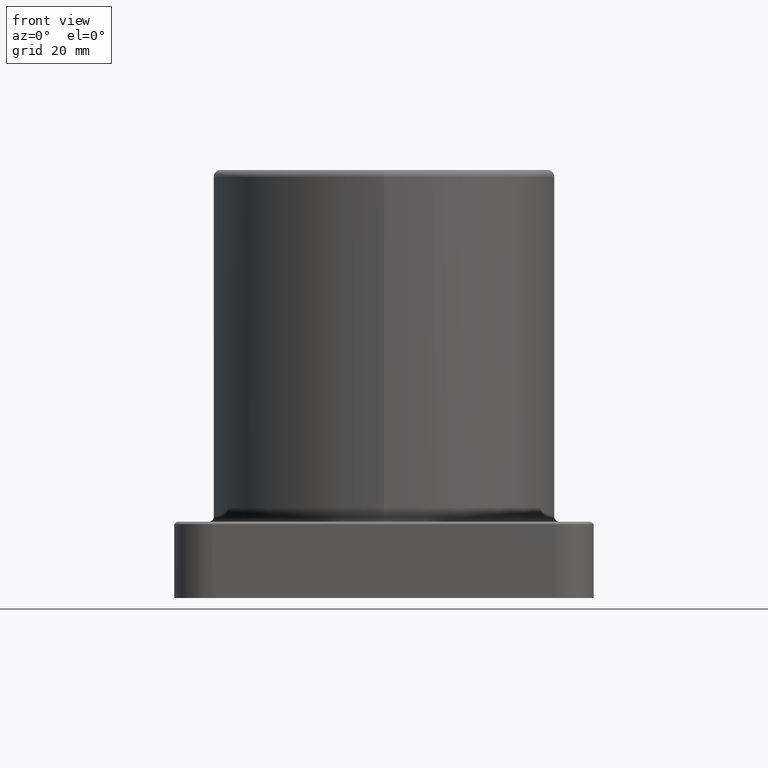
[diagram: clean part render]
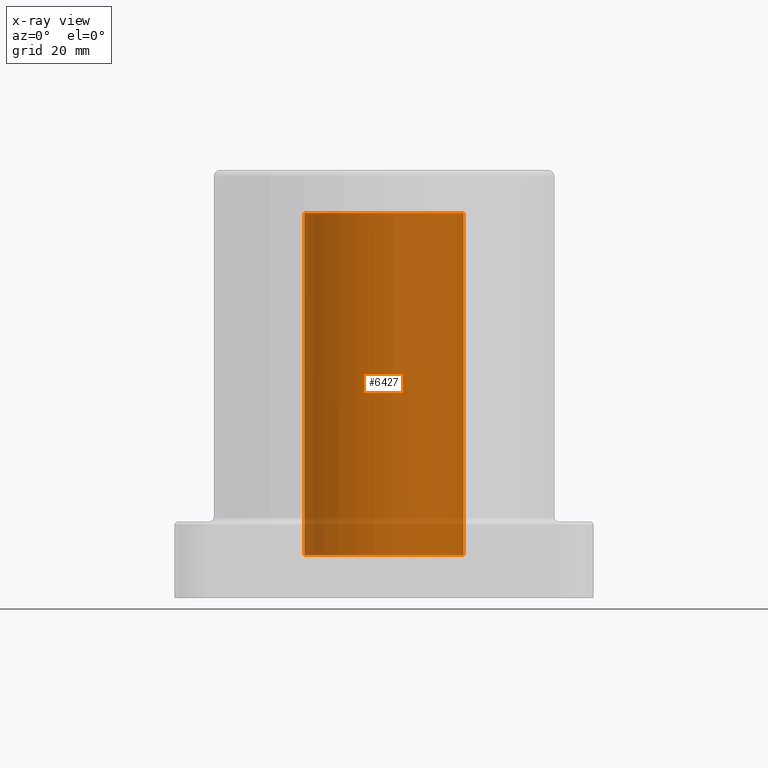
[diagram: x-ray — body ghosted, one internal face saturated and labeled with its STEP entity id]
A machine part, front view, then the same camera in x-ray: the body is ghosted and one INTERNAL B-rep face — a face not visible from any outside direction — is saturated and labeled: STEP entity #6427.
In plain terms, the highlighted cylindrical surface (partial cylindrical patch) has radius 13.2715 mm, axis along (0, 0, 1).
Its self-contained STEP definition (entity closure, byte-faithful):
#264 = EDGE_CURVE ( 'NONE', #779, #8091, #946, .T. ) ;
#518 = CYLINDRICAL_SURFACE ( 'NONE', #3303, 0.5225000000000000755 ) ;
#779 = VERTEX_POINT ( 'NONE', #1652 ) ;
#916 = CARTESIAN_POINT ( 'NONE',  ( 0.000000000000000000, -1.711586765992788363E-16, 0.2817499999999995008 ) ) ;
#946 = LINE ( 'NONE', #2219, #6269 ) ;
#951 = ORIENTED_EDGE ( 'NONE', *, *, #2130, .F. ) ;
#1152 = DIRECTION ( 'NONE',  ( 1.000000000000000000, 0.000000000000000000, 0.000000000000000000 ) ) ;
#1384 = CIRCLE ( 'NONE', #7949, 0.5225000000000000755 ) ;
#1602 = DIRECTION ( 'NONE',  ( 0.000000000000000000, 3.971110341195992010E-17, 1.000000000000000000 ) ) ;
#1606 = CARTESIAN_POINT ( 'NONE',  ( -0.5225000000000000755, -1.071708813438296312E-16, 0.2717499999999999361 ) ) ;
#1652 = CARTESIAN_POINT ( 'NONE',  ( 0.5225000000000000755, -1.711586765992788363E-16, 0.2817499999999995008 ) ) ;
#2130 = EDGE_CURVE ( 'NONE', #5822, #779, #1384, .T. ) ;
#2219 = CARTESIAN_POINT ( 'NONE',  ( 0.5225000000000000755, -1.711586765992788363E-16, 0.2717499999999999361 ) ) ;
#2719 = EDGE_LOOP ( 'NONE', ( #951, #2778, #7088, #6354 ) ) ;
#2778 = ORIENTED_EDGE ( 'NONE', *, *, #6641, .T. ) ;
#2904 = CARTESIAN_POINT ( 'NONE',  ( 0.000000000000000000, -1.711586765992788610E-16, 2.524250000000000327 ) ) ;
#2986 = CIRCLE ( 'NONE', #5401, 0.5225000000000000755 ) ;
#3303 = AXIS2_PLACEMENT_3D ( 'NONE', #4814, #4186, #1152 ) ;
#3424 = LINE ( 'NONE', #1606, #5823 ) ;
#3520 = FACE_OUTER_BOUND ( 'NONE', #2719, .T. ) ;
#4021 = CARTESIAN_POINT ( 'NONE',  ( -0.5225000000000000755, -1.071708813438296312E-16, 0.2817499999999995008 ) ) ;
#4186 = DIRECTION ( 'NONE',  ( -0.000000000000000000, -0.000000000000000000, 1.000000000000000000 ) ) ;
#4696 = CARTESIAN_POINT ( 'NONE',  ( 0.5225000000000000755, -1.711586765992788363E-16, 2.524250000000000327 ) ) ;
#4720 = DIRECTION ( 'NONE',  ( 0.000000000000000000, 1.000000000000000000, -6.535521515943211914E-17 ) ) ;
#4814 = CARTESIAN_POINT ( 'NONE',  ( 0.000000000000000000, -1.711586765992788363E-16, 0.2717499999999999361 ) ) ;
#4903 = VERTEX_POINT ( 'NONE', #5989 ) ;
#5220 = DIRECTION ( 'NONE',  ( -0.000000000000000000, -0.000000000000000000, 1.000000000000000000 ) ) ;
#5401 = AXIS2_PLACEMENT_3D ( 'NONE', #2904, #7438, #7360 ) ;
#5822 = VERTEX_POINT ( 'NONE', #4021 ) ;
#5823 = VECTOR ( 'NONE', #7497, 39.37007874015748143 ) ;
#5989 = CARTESIAN_POINT ( 'NONE',  ( -0.5225000000000000755, -1.071708813438296312E-16, 2.524250000000000327 ) ) ;
#6269 = VECTOR ( 'NONE', #5220, 39.37007874015748143 ) ;
#6354 = ORIENTED_EDGE ( 'NONE', *, *, #264, .F. ) ;
#6427 = ADVANCED_FACE ( 'NONE', ( #3520 ), #518, .F. ) ;
#6641 = EDGE_CURVE ( 'NONE', #5822, #4903, #3424, .T. ) ;
#7088 = ORIENTED_EDGE ( 'NONE', *, *, #7496, .F. ) ;
#7360 = DIRECTION ( 'NONE',  ( 0.000000000000000000, -1.000000000000000000, 0.000000000000000000 ) ) ;
#7438 = DIRECTION ( 'NONE',  ( -0.000000000000000000, 3.971110341195992010E-17, -1.000000000000000000 ) ) ;
#7496 = EDGE_CURVE ( 'NONE', #8091, #4903, #2986, .T. ) ;
#7497 = DIRECTION ( 'NONE',  ( -0.000000000000000000, -0.000000000000000000, 1.000000000000000000 ) ) ;
#7949 = AXIS2_PLACEMENT_3D ( 'NONE', #916, #1602, #4720 ) ;
#8091 = VERTEX_POINT ( 'NONE', #4696 ) ;